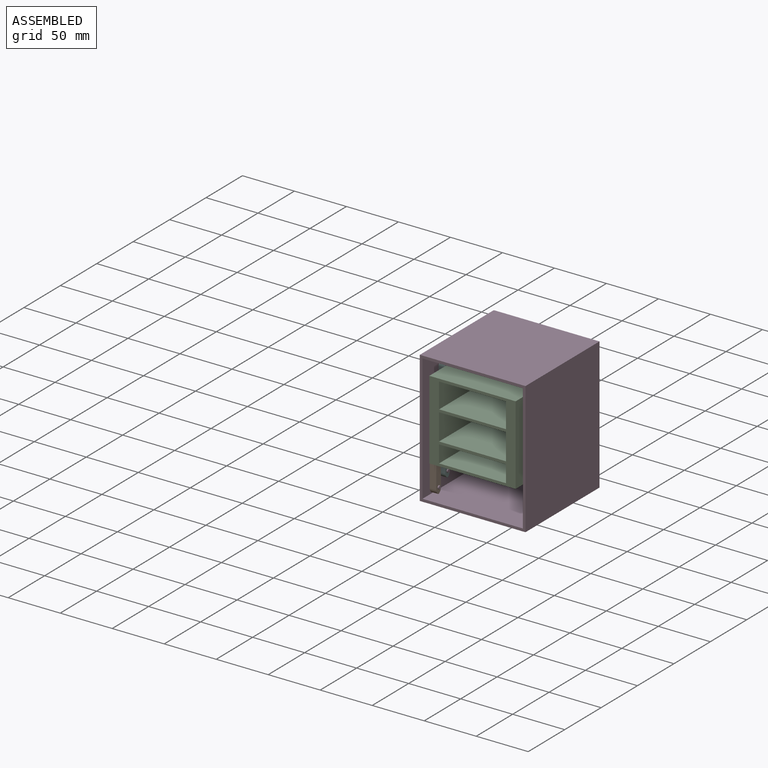
[diagram: assembled view]
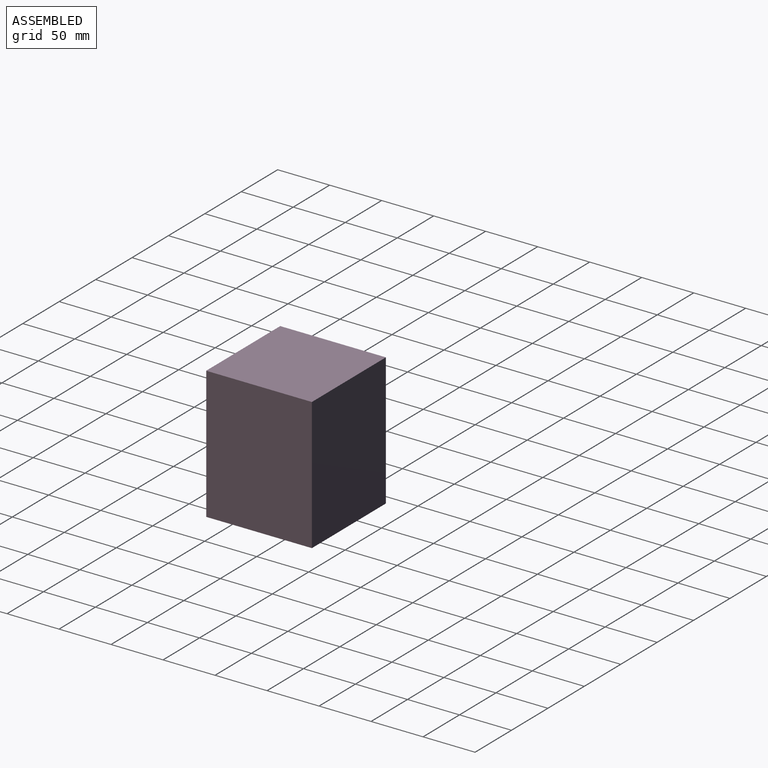
[diagram: assembled view, second angle]
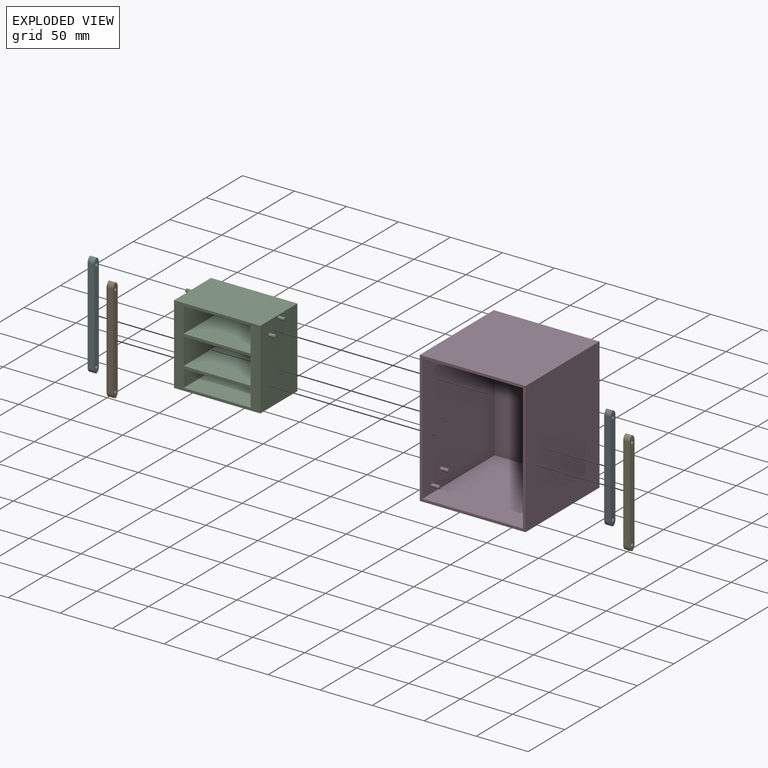
[diagram: exploded view]
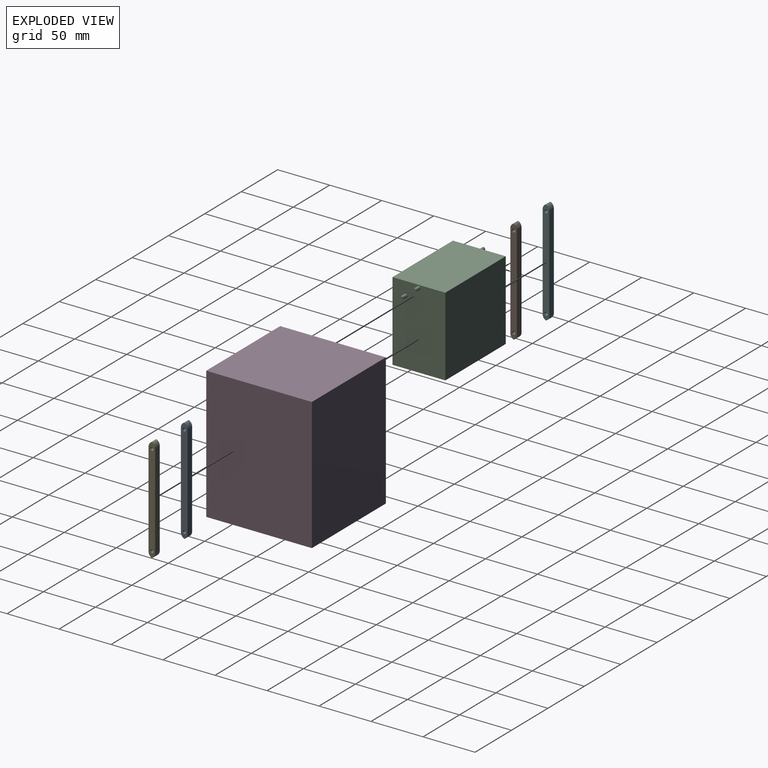
[diagram: exploded view, second angle]
ASSEMBLY  parts=6 mates=5
PART A: 10 faces, bbox 100.9x6.4x6.4 mm
  f0: plane 91.44x6.35mm, normal (0,0,-1), area 580.6mm2, adj f2,f3,f5,f6
  f1: plane 91.44x6.35mm, normal (0,0,1), area 580.6mm2, adj f2,f3,f4,f7
  f2: plane 100.86x6.35mm, normal (0,-1,0), area 608.1mm2, adj f0,f1,f4,f5,f6,f7,f8,f9
  f3: plane 100.86x6.35mm, normal (0,1,0), area 608.1mm2, adj f0,f1,f4,f5,f6,f7,f8,f9
  f4: cylinder r=5.08mm len=6.35mm, axis (0,-1,0), area 38.3mm2, adj f1,f2,f3,f5
  f5: cylinder r=5.08mm len=6.35mm, axis (0,1,0), area 38.3mm2, adj f0,f2,f3,f4
  f6: cylinder r=5.08mm len=6.35mm, axis (0,-1,0), area 38.3mm2, adj f0,f2,f3,f7
  f7: cylinder r=5.08mm len=6.35mm, axis (0,1,0), area 38.3mm2, adj f1,f2,f3,f6
  f8: cylinder r=1.59mm len=6.35mm, axis (0,1,0), area 63.3mm2, adj f2,f3
  f9: cylinder r=1.59mm len=6.35mm, axis (0,1,0), area 63.3mm2, adj f2,f3
PART B: same geometry as A
PART C: 29 faces, bbox 94.8x50.8x76.2 mm
  f0: plane 64.34x25.4mm, normal (0,-1,0), area 1634.1mm2, adj f6,f7,f9,f17
  f1: plane 64.34x24.13mm, normal (0,-1,0), area 1552.4mm2, adj f3,f5,f10,f18
  f2: plane 64.34x16.51mm, normal (0,-1,0), area 1062.2mm2, adj f4,f8,f15,f16
  f3: plane 64.34x48.26mm, normal (0,0,-1), area 3104.9mm2, adj f1,f10,f11,f18
  f4: plane 64.34x48.26mm, normal (0,0,1), area 3104.9mm2, adj f2,f11,f15,f16
  f5: plane 64.34x48.26mm, normal (0,0,1), area 3104.9mm2, adj f1,f10,f11,f18
  f6: plane 64.34x48.26mm, normal (0,0,-1), area 3104.9mm2, adj f0,f9,f11,f17
  f7: plane 64.34x48.26mm, normal (0,0,1), area 3104.9mm2, adj f0,f9,f11,f17
  f8: plane 64.34x48.26mm, normal (0,0,-1), area 3104.9mm2, adj f2,f11,f15,f16
  f9: plane 48.26x25.4mm, normal (1,0,0), area 1225.8mm2, adj f0,f6,f7,f11
  f10: plane 48.26x24.13mm, normal (1,0,0), area 1164.5mm2, adj f1,f3,f5,f11
  f11: plane 82.98x76.2mm, normal (0,-1,0), area 2074.6mm2, adj f3,f4,f5,f6,f7,f8,f9,f10
  f12: plane 82.98x76.2mm, normal (0,1,0), area 6323.4mm2, adj f13,f14,f19,f24
  f13: plane 82.98x50.8mm, normal (0,0,1), area 4215.6mm2, adj f11,f12,f19,f24
  f14: plane 82.98x50.8mm, normal (0,0,-1), area 4215.6mm2, adj f11,f12,f19,f24
  f15: plane 48.26x16.51mm, normal (1,0,0), area 796.8mm2, adj f2,f4,f8,f11
  f16: plane 48.26x16.51mm, normal (-1,0,0), area 796.8mm2, adj f2,f4,f8,f11
  f17: plane 48.26x25.4mm, normal (-1,0,0), area 1225.8mm2, adj f0,f6,f7,f11
  f18: plane 48.26x24.13mm, normal (-1,0,0), area 1164.5mm2, adj f1,f3,f5,f11
  f19: plane 76.2x50.8mm, normal (-1,0,0), area 3855.1mm2, adj f11,f12,f13,f14,f21,f23
  f20: plane 3.18x3.18mm, normal (-1,0,0), area 7.9mm2, adj f21
  f21: cylinder r=1.59mm len=5.92mm, axis (1,0,0), area 59mm2, adj f19,f20
  f22: plane 3.18x3.18mm, normal (-1,0,0), area 7.9mm2, adj f23
  f23: cylinder r=1.59mm len=5.92mm, axis (1,0,0), area 59mm2, adj f19,f22
  f24: plane 76.2x50.8mm, normal (1,0,0), area 3855.1mm2, adj f11,f12,f13,f14,f26,f28
  f25: plane 3.18x3.18mm, normal (1,0,0), area 7.9mm2, adj f26
  f26: cylinder r=1.59mm len=5.92mm, axis (-1,0,0), area 59mm2, adj f24,f25
  f27: plane 3.18x3.18mm, normal (1,0,0), area 7.9mm2, adj f28
  f28: cylinder r=1.59mm len=5.92mm, axis (-1,0,0), area 59mm2, adj f24,f27
PART D: 19 faces, bbox 101.6x101.6x127 mm
  f0: plane 127x101.6mm, normal (0,-1,0), area 1135.5mm2, adj f1,f3,f4,f5,f6,f8,f9,f10
  f1: plane 127x101.6mm, normal (1,0,0), area 12903.2mm2, adj f0,f2,f4,f5
  f2: plane 127x101.6mm, normal (0,1,0), area 12903.2mm2, adj f1,f3,f4,f5
  f3: plane 127x101.6mm, normal (-1,0,0), area 12903.2mm2, adj f0,f2,f4,f5
  f4: plane 101.6x101.6mm, normal (0,0,1), area 10322.6mm2, adj f0,f1,f2,f3
  f5: plane 101.6x101.6mm, normal (0,0,-1), area 10322.6mm2, adj f0,f1,f2,f3
  f6: plane 121.92x99.06mm, normal (-1,0,0), area 12061.6mm2, adj f0,f7,f9,f10,f11,f17
  f7: plane 121.92x96.52mm, normal (0,-1,0), area 11767.7mm2, adj f6,f8,f9,f10
  f8: plane 121.92x99.06mm, normal (1,0,0), area 12061.6mm2, adj f0,f7,f9,f10,f13,f15
  f9: plane 99.06x96.52mm, normal (0,0,-1), area 9561.3mm2, adj f0,f6,f7,f8
  f10: plane 99.06x96.52mm, normal (0,0,1), area 9561.3mm2, adj f0,f6,f7,f8
  f11: cylinder r=1.59mm len=7.62mm, axis (1,0,0), area 76mm2, adj f6,f12
  f12: plane 3.18x3.18mm, normal (-1,0,0), area 7.9mm2, adj f11
  f13: cylinder r=1.59mm len=7.62mm, axis (-1,0,0), area 76mm2, adj f8,f14
  f14: plane 3.18x3.18mm, normal (1,0,0), area 7.9mm2, adj f13
  f15: cylinder r=1.59mm len=7.62mm, axis (-1,0,0), area 76mm2, adj f8,f16
  f16: plane 3.18x3.18mm, normal (1,0,0), area 7.9mm2, adj f15
  f17: cylinder r=1.59mm len=7.62mm, axis (1,0,0), area 76mm2, adj f6,f18
  f18: plane 3.18x3.18mm, normal (-1,0,0), area 7.9mm2, adj f17
PART E: same geometry as A
PART F: same geometry as A
PLACE A rot(axis=(-0.58,-0.58,-0.58),120deg) t=(14.75,3.97,79.72)mm
PLACE B rot(axis=(-0.58,-0.58,-0.58),120deg) t=(-75.42,-8.32,70.05)mm
PLACE C t=(-31.38,14.64,51)mm
PLACE D t=(-33.51,29.37,16.22)mm
PLACE E rot(axis=(-0.58,-0.58,-0.58),120deg) t=(14.75,-8.32,70.05)mm
PLACE F rot(axis=(-0.58,-0.58,-0.58),120deg) t=(-75.42,3.97,79.72)mm
MATE pin_slot A.f8 <-> D.f17  axis (1,0,0) through (14.75,3.97,35.27)mm
MATE pin_slot C.f23 <-> B.f9  axis (-1,0,0) through (-75.42,-8.32,114.5)mm
MATE pin_slot B.f8 <-> D.f11  axis (-1,0,0) through (-81.77,-8.32,25.6)mm
MATE pin_slot E.f8 <-> D.f13  axis (1,0,0) through (14.75,-8.32,25.6)mm
MATE pin_slot F.f8 <-> D.f15  axis (-1,0,0) through (-81.77,3.97,35.27)mm
